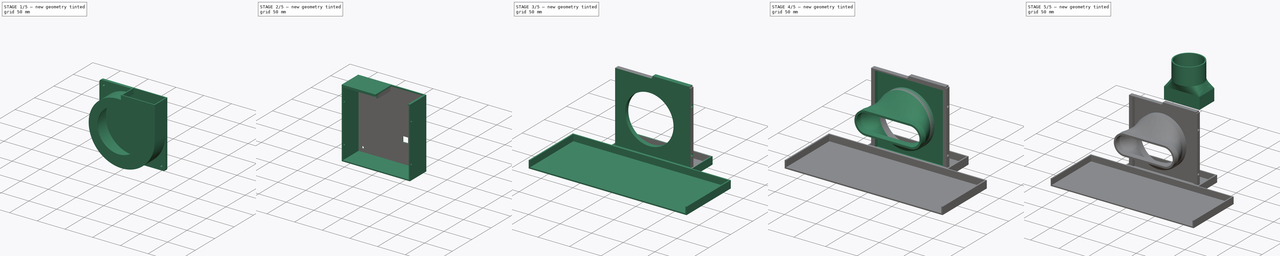
[diagram: build sequence overview — one tinted view per stage of 5, left to right]
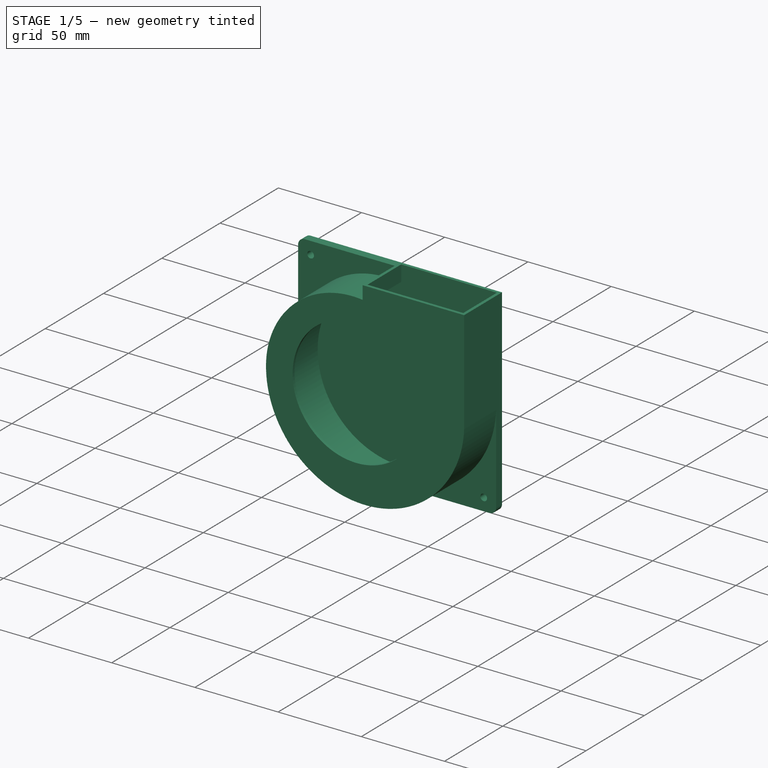
[diagram: stage 1 of 5 — iso view after this stage's code; geometry added in this stage tinted green]
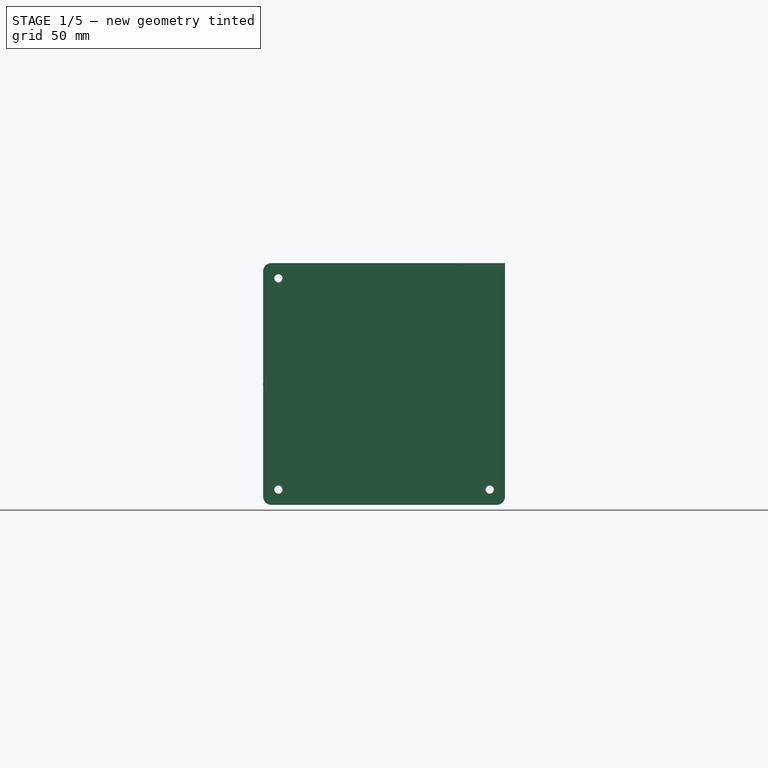
[diagram: stage 1 of 5 — front view after this stage's code; geometry added in this stage tinted green]
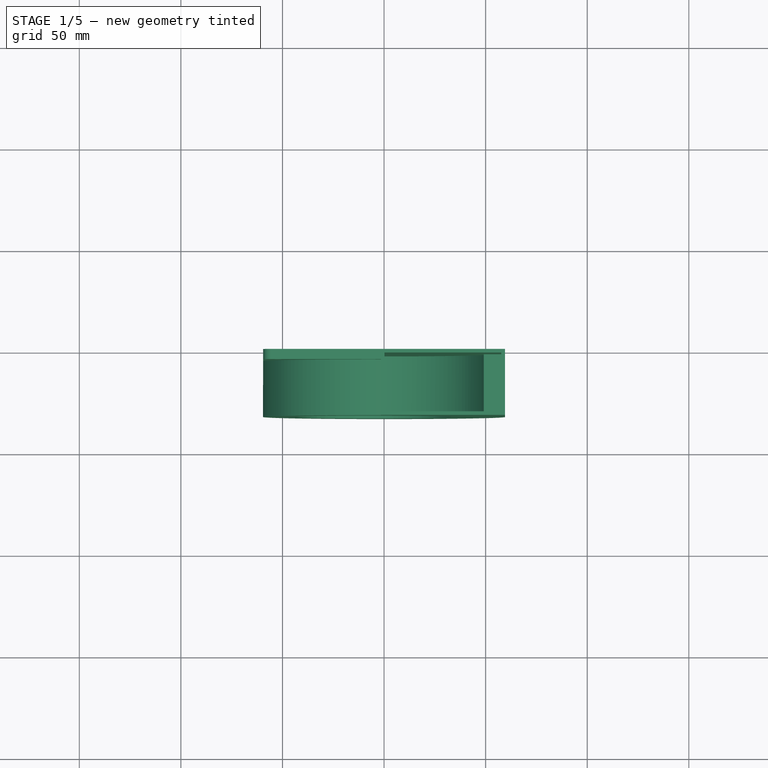
[diagram: stage 1 of 5 — top view after this stage's code; geometry added in this stage tinted green]
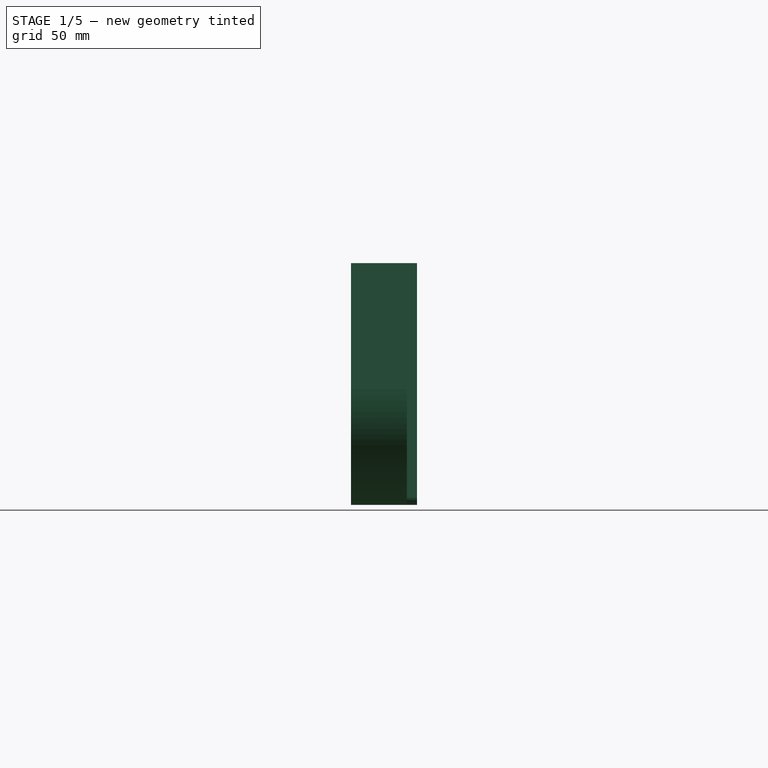
[diagram: stage 1 of 5 — right view after this stage's code; geometry added in this stage tinted green]
FCSTD DOCUMENT  (FreeCAD 1.0R39109 (Git))
Label: FumeHood
License: All rights reserved
LicenseURL: http://en.wikipedia.org/wiki/All_rights_reserved
objects: Sketcher::SketchObject×22, PartDesign::Pad×13, PartDesign::Pocket×9, PartDesign::Body×6, PartDesign::SubShapeBinder×6, PartDesign::AdditiveLoft×2, PartDesign::Fillet×1
note: 131 computed .brp shape members not serialized (recipe doc carries the construction recipe); baked Part::Feature solids carry a one-line shape summary decoded from their .brp

FEATURE [Sketcher::SketchObject] Sketch  label="FanBackSketch"
  ArcFitTolerance = 0
  AttachmentSupport = -> [XZ_Plane]
  FullyConstrained = true
  MakeInternals = false
  MapMode = 5
  Placement = pos=(0,0,0) rot=(1,0,0;1.5708rad)
  sketch-geometry (8):
    g0: LineSegment StartX=59.5 StartY=-59.5 StartZ=0 EndX=59.5 EndY=59.5 EndZ=0
    g1: LineSegment StartX=59.5 StartY=59.5 StartZ=0 EndX=-59.5 EndY=59.5 EndZ=0
    g2: LineSegment StartX=-59.5 StartY=59.5 StartZ=0 EndX=-59.5 EndY=-59.5 EndZ=0
    g3: LineSegment StartX=-59.5 StartY=-59.5 StartZ=0 EndX=59.5 EndY=-59.5 EndZ=0
    g4: GeomPoint [constr] X=0 Y=0 Z=0
    g5: Circle CenterX=-52 CenterY=52 CenterZ=0 NormalX=0 NormalY=0 NormalZ=1 AngleXU=0 Radius=2
    g6: Circle CenterX=52 CenterY=-52 CenterZ=0 NormalX=0 NormalY=0 NormalZ=1 AngleXU=0 Radius=2
    g7: Circle CenterX=-52 CenterY=-52 CenterZ=0 NormalX=0 NormalY=0 NormalZ=1 AngleXU=0 Radius=2
  constraints (22):
    c: Coincident(g0,g1)
    c: Coincident(g1,g2)
    c: Coincident(g2,g3)
    c: Coincident(g3,g0)
    c: Horizontal(g1)
    c: Horizontal(g3)
    c: Vertical(g0)
    c: Vertical(g2)
    c: Symmetric(g1,g0,g4)
    c: Coincident(g4,g-1)
    c: DistanceY(g2,g2) = 119  'height'
    c: DistanceX(g1,g1) = 119  'width'
    c: Equal(g5,g7)
    c: Equal(g5,g6)
    c: Diameter(g5) = 4  'skrewDiameter'
    c: Vertical(g5,g7)
    c: Horizontal(g7,g6)
    c: DistanceX(g2,g7) = 7.5
    c: DistanceY(g2,g7) = 7.5
    c: DistanceY(g5,g1) = 7.5
    c: DistanceX(g6,g0) = 7.5
    c: DistanceX(g7,g4) = 52  'skrewOffset'
FEATURE [PartDesign::Pad] Pad  label="FanBackPad"
  Direction = (0,-1,2e-16)
  Length = 5
  Length2 = 10
  Placement = pos=(0,0,0) rot=(1,0,0;1.5708rad)
  Profile = -> Sketch
  ReferenceAxis = -> Sketch [N_Axis]
  Suppressed = false
  Type = 0
FEATURE [Sketcher::SketchObject] Sketch001  label="FanShellSketch"
  ArcFitTolerance = 0
  AttachmentSupport = -> [Pad]
  ExternalGeometry = -> [Pad]
  FullyConstrained = true
  MakeInternals = false
  MapMode = 5
  Placement = pos=(0,-5,0) rot=(1,0,0;1.5708rad)
  sketch-geometry (10):
    g0: Circle CenterX=-5.32 CenterY=0.16 CenterZ=0 NormalX=0 NormalY=0 NormalZ=1 AngleXU=0 Radius=38.25
    g1: LineSegment StartX=59.5 StartY=59.5 StartZ=0 EndX=-1.5 EndY=59.5 EndZ=0
    g2: LineSegment StartX=-1.5 StartY=59.5 StartZ=0 EndX=-1.5 EndY=51.5 EndZ=0
    g3: LineSegment StartX=59.5 StartY=-2.5 StartZ=0 EndX=59.5 EndY=59.5 EndZ=0
    g4: GeomPoint [constr] X=-59.5 Y=-2.5 Z=0
    g5: GeomPoint [constr] X=-1.5 Y=-59.5 Z=0
    g6: GeomPoint [constr] X=59.5 Y=-2.5 Z=0
    g7: ArcOfCircle CenterX=-7.68966 CenterY=0 CenterZ=0 NormalX=0 NormalY=0 NormalZ=1 AngleXU=0 Radius=51.8706 StartAngle=1.45118 EndAngle=3.18981
    g8: ArcOfCircle CenterX=-0.0344828 CenterY=0 CenterZ=0 NormalX=0 NormalY=0 NormalZ=1 AngleXU=0 Radius=59.518 StartAngle=3.18361 EndAngle=4.68776
    g9: ArcOfCircle CenterX=0.0327869 CenterY=0 CenterZ=0 NormalX=0 NormalY=0 NormalZ=1 AngleXU=0 Radius=59.5197 StartAngle=4.68663 EndAngle=6.24117
  constraints (26):
    c: DistanceX(g0,g-1) = 5.32  'inntakeWidthOffset'
    c: Diameter(g0) = 76.5  'inntakeDiameter'
    c: Coincident(g1,g2)
    c: Coincident(g3,g1)
    c: Horizontal(g1)
    c: Vertical(g2)
    c: Vertical(g3)
    c: Coincident(g1,g-7)
    c: DistanceX(g1,g1) = 61  'exhaustWidth'
    c: DistanceY(g2,g2) = 8  'exhaustHeight'
    c: PointOnObject(g4,g-6)
    c: DistanceY(g-6,g4) = 57
    c: PointOnObject(g5,g-8)
    c: Horizontal(g6,g4)
    c: Vertical(g5,g2)
    c: Coincident(g7,g2)
    c: Coincident(g7,g4)
    c: Coincident(g8,g7)
    c: Coincident(g9,g8)
    c: Coincident(g9,g6)
    c: PointOnObject(g7,g-1)
    c: Coincident(g8,g5)
    c: PointOnObject(g8,g-1)
    c: PointOnObject(g9,g-1)
    c: Coincident(g3,g9)
    c: DistanceY(g9,g0) = 0.16  'inntakeHeightOffset'
FEATURE [PartDesign::Pad] Pad001  label="FanShellPad"
  BaseFeature = -> Pad
  Direction = (0,-1,2e-16)
  Length = 27.5
  Length2 = 10
  Placement = pos=(0,0,0) rot=(1,0,0;1.5708rad)
  Profile = -> Sketch001
  ReferenceAxis = -> Sketch001 [N_Axis]
  Suppressed = false
  Type = 0
FEATURE [Sketcher::SketchObject] Sketch002  label="FanExhaustSketch"
  ArcFitTolerance = 0
  AttachmentSupport = -> [Pad001]
  ExternalGeometry = -> [Pad001]
  FullyConstrained = true
  MakeInternals = false
  MapMode = 5
  Placement = pos=(0,1.32e-14,59.5) rot=(0,0,1;3.14159rad)
  sketch-geometry (4):
    g0: LineSegment StartX=-57.7 StartY=30.7 StartZ=0 EndX=-0.2 EndY=30.7 EndZ=0
    g1: LineSegment StartX=-0.2 StartY=30.7 StartZ=0 EndX=-0.2 EndY=1.8 EndZ=0
    g2: LineSegment StartX=-0.2 StartY=1.8 StartZ=0 EndX=-57.7 EndY=1.8 EndZ=0
    g3: LineSegment StartX=-57.7 StartY=1.8 StartZ=0 EndX=-57.7 EndY=30.7 EndZ=0
  constraints (12):
    c: Coincident(g0,g1)
    c: Coincident(g1,g2)
    c: Coincident(g2,g3)
    c: Coincident(g3,g0)
    c: Horizontal(g0)
    c: Horizontal(g2)
    c: Vertical(g1)
    c: Vertical(g3)
    c: DistanceY(g0,g-3) = 1.8
    c: DistanceX(g-3,g0) = 1.8
    c: DistanceY(g-1,g1) = 1.8
    c: DistanceX(g0,g0) = 57.5
FEATURE [PartDesign::Pocket] Pocket  label="FanExhaustPocket"
  BaseFeature = -> Pad001
  Direction = (0,0,-1)
  Length = 50
  Length2 = 5
  Placement = pos=(0,0,0) rot=(1,0,0;1.5708rad)
  Profile = -> Sketch002
  ReferenceAxis = -> Sketch002 [N_Axis]
  Suppressed = false
  Type = 0
FEATURE [Sketcher::SketchObject] Sketch003  label="FanInternalSketch"
  ArcFitTolerance = 0
  AttachmentSupport = -> [Pocket]
  ExternalGeometry = -> [Pocket]
  FullyConstrained = true
  MakeInternals = false
  MapMode = 5
  Placement = pos=(0,-1.8,0) rot=(1,0,0;1.5708rad)
  sketch-geometry (1):
    g0: Circle CenterX=0 CenterY=0 CenterZ=0 NormalX=0 NormalY=0 NormalZ=1 AngleXU=0 Radius=50
  constraints (2):
    c: Coincident(g0,g-1)
    c: Diameter(g0) = 100
FEATURE [PartDesign::Pocket] Pocket001  label="FanInternalPocket"
  BaseFeature = -> Pocket
  Direction = (0,1,-2e-16)
  Length = 29
  Length2 = 5
  Placement = pos=(0,0,0) rot=(1,0,0;1.5708rad)
  Profile = -> Sketch003
  ReferenceAxis = -> Sketch003 [N_Axis]
  Reversed = true
  Suppressed = false
  Type = 0
FEATURE [PartDesign::Fillet] Fillet
  Base = -> Pocket001 [Edge12,Edge6,Edge1]
  BaseFeature = -> Pocket001
  Placement = pos=(0,0,0) rot=(1,0,0;1.5708rad)
  Radius = 4
  SupportTransform = false
  Suppressed = false
  UseAllEdges = false
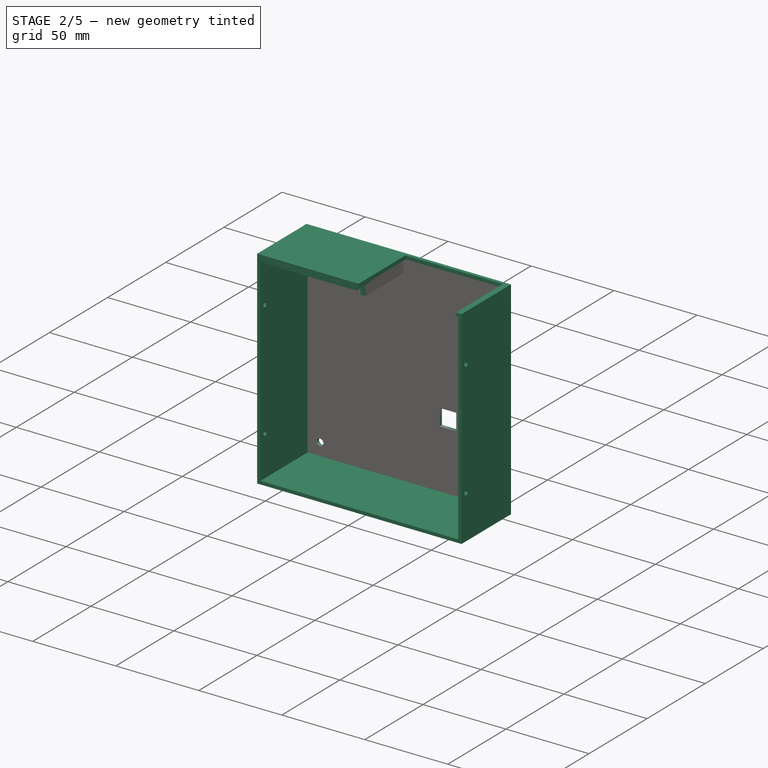
[diagram: stage 2 of 5 — iso view after this stage's code; geometry added in this stage tinted green]
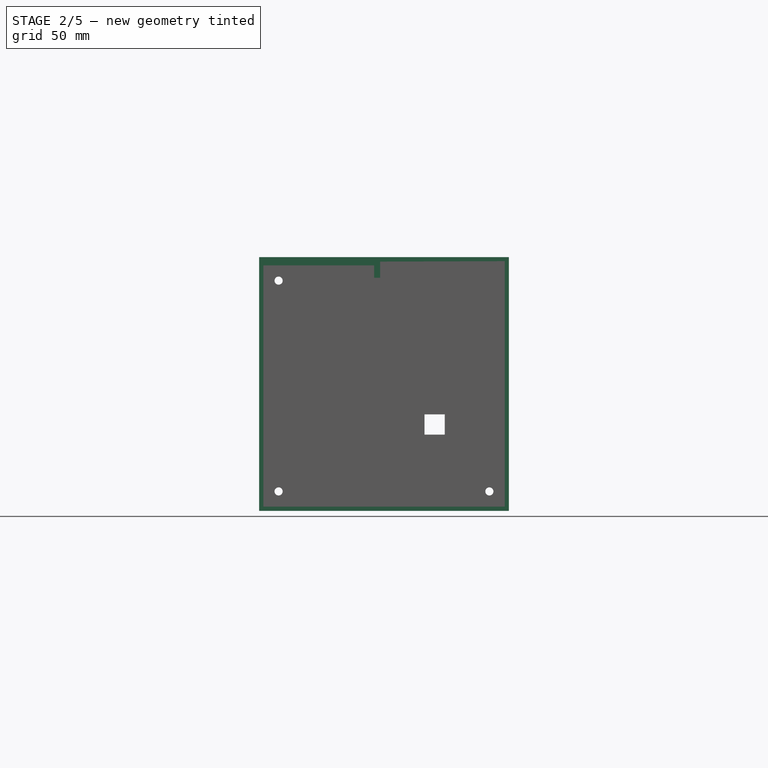
[diagram: stage 2 of 5 — front view after this stage's code; geometry added in this stage tinted green]
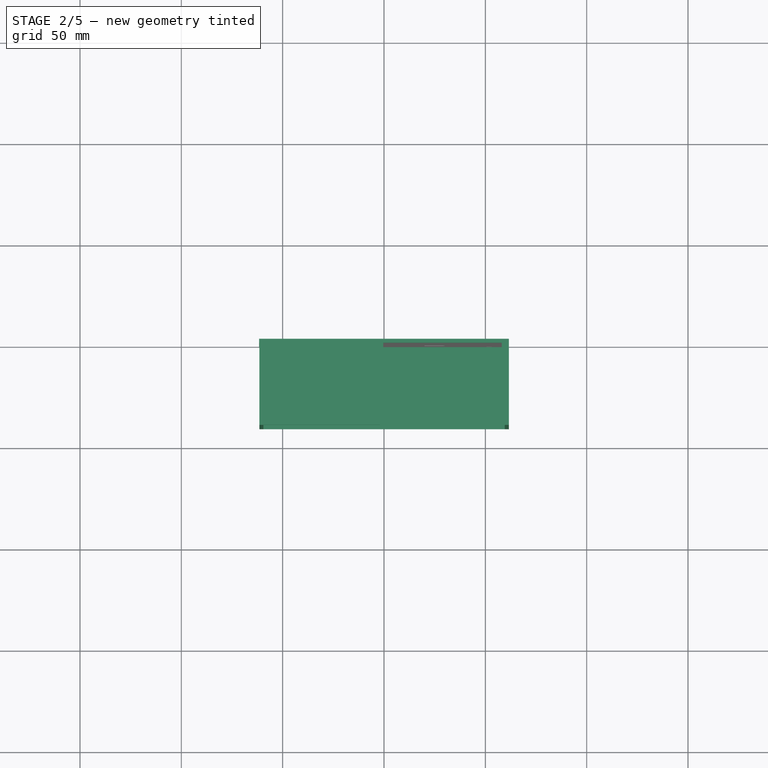
[diagram: stage 2 of 5 — top view after this stage's code; geometry added in this stage tinted green]
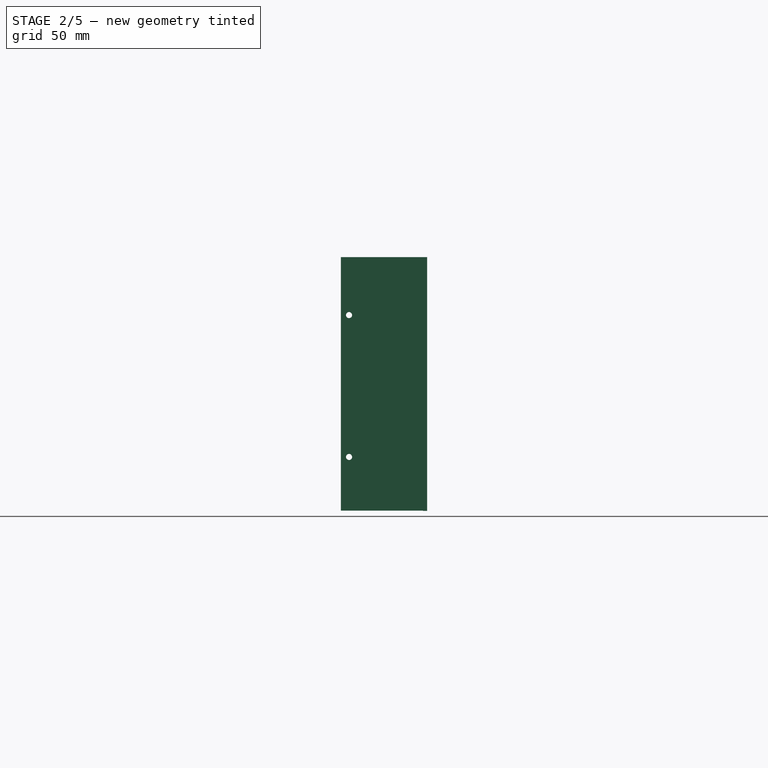
[diagram: stage 2 of 5 — right view after this stage's code; geometry added in this stage tinted green]
FEATURE [PartDesign::Body] Body004  label="InntakeBox"
  AllowCompound = false
  Group = -> [Binder003,Binder,Sketch016,Pad010,Sketch018,Pocket005,Sketch019,Pocket006,Sketch041,Pad026,Sketch042,AdditiveLoft001,Pad027,Sketch044,Pocket016]
  Origin = -> Origin004
  Tip = -> Pocket016
FEATURE [PartDesign::SubShapeBinder] Binder004  label="FanBodyCasingBinder"
  BindCopyOnChange = 0
  BindMode = 0
  ClaimChildren = false
  Context = -> Body001 [Binder004.]
  Fuse = false
  MakeFace = true
  OffsetFill = false
  OffsetIntersection = false
  OffsetJoinType = 0
  OffsetOpenResult = false
  PartialLoad = false
  Refine = true
  Relative = true
  Support = -> [Body[Fillet.]]
  _Version = 2
FEATURE [Sketcher::SketchObject] Sketch004  label="CasingBackSketch"
  ArcFitTolerance = 0
  AttachmentSupport = -> [XZ_Plane001]
  ExternalGeometry = -> [Binder004]
  FullyConstrained = true
  MakeInternals = false
  MapMode = 5
  Placement = pos=(0,0,0) rot=(1,0,0;1.5708rad)
  sketch-geometry (7):
    g0: Circle CenterX=-52 CenterY=52 CenterZ=0 NormalX=0 NormalY=0 NormalZ=1 AngleXU=0 Radius=2
    g1: Circle CenterX=-52 CenterY=-52 CenterZ=0 NormalX=0 NormalY=0 NormalZ=1 AngleXU=0 Radius=2
    g2: Circle CenterX=52 CenterY=-52 CenterZ=0 NormalX=0 NormalY=0 NormalZ=1 AngleXU=0 Radius=2
    g3: LineSegment StartX=-61.6 StartY=63.6 StartZ=0 EndX=-61.6 EndY=-61.6 EndZ=0
    g4: LineSegment StartX=-61.6 StartY=-61.6 StartZ=0 EndX=61.6 EndY=-61.6 EndZ=0
    g5: LineSegment StartX=61.6 StartY=-61.6 StartZ=0 EndX=61.6 EndY=63.6 EndZ=0
    g6: LineSegment StartX=61.6 StartY=63.6 StartZ=0 EndX=-61.6 EndY=63.6 EndZ=0
  constraints (18):
    c: Coincident(g0,g-3)
    c: Equal(g0,g-3)
    c: Coincident(g1,g-4)
    c: Equal(g1,g-4)
    c: Coincident(g2,g-5)
    c: Equal(g2,g-5)
    c: Coincident(g3,g4)
    c: Coincident(g4,g5)
    c: Coincident(g5,g6)
    c: Coincident(g6,g3)
    c: Vertical(g3)
    c: Vertical(g5)
    c: Horizontal(g4)
    c: Horizontal(g6)
    c: DistanceX(g-7,g4) = 2.1
    c: DistanceY(g4,g-6) = 2.1
    c: DistanceX(g3,g-8) = 2.1
    c: DistanceY(g-7,g5) = 4.1
FEATURE [PartDesign::Pad] Pad002  label="CasingBackPad"
  Direction = (0,-1,2e-16)
  Length = 2
  Length2 = 10
  Placement = pos=(0,0,0) rot=(1,0,0;1.5708rad)
  Profile = -> Sketch004
  ReferenceAxis = -> Sketch004 [N_Axis]
  Reversed = true
  Suppressed = false
  Type = 0
FEATURE [Sketcher::SketchObject] Sketch005  label="CasingShellSketch"
  ArcFitTolerance = 0
  AttachmentSupport = -> [Pad002]
  ExternalGeometry = -> [Binder004,Pad002]
  FullyConstrained = true
  MakeInternals = false
  MapMode = 5
  Placement = pos=(0,0,0) rot=(1,0,0;1.5708rad)
  sketch-geometry (16):
    g0: LineSegment StartX=-61.5 StartY=63.6 StartZ=0 EndX=-0.4 EndY=63.6 EndZ=0
    g1: LineSegment StartX=-4.9 StartY=53.4 StartZ=0 EndX=-4.9 EndY=59.5 EndZ=0
    g2: LineSegment StartX=-4.9 StartY=59.5 StartZ=0 EndX=-59.5 EndY=59.5 EndZ=0
    g3: LineSegment StartX=-1.9 StartY=61.4 StartZ=0 EndX=-0.4 EndY=61.4 EndZ=0
    g4: LineSegment StartX=-0.4 StartY=61.4 StartZ=0 EndX=-0.4 EndY=63.6 EndZ=0
    g5: LineSegment StartX=-1.9 StartY=61.4 StartZ=0 EndX=-1.9 EndY=53.4 EndZ=0
    g6: LineSegment StartX=-1.9 StartY=53.4 StartZ=0 EndX=-4.9 EndY=53.4 EndZ=0
    g7: LineSegment StartX=-59.5 StartY=59.5 StartZ=0 EndX=-59.5 EndY=-59.5 EndZ=0
    g8: LineSegment StartX=-59.5 StartY=-59.5 StartZ=0 EndX=59.6 EndY=-59.5 EndZ=0
    g9: LineSegment StartX=59.6 StartY=-59.5 StartZ=0 EndX=59.6 EndY=61.6 EndZ=0
    g10: LineSegment StartX=59.6 StartY=61.6 StartZ=0 EndX=58.1 EndY=61.6 EndZ=0
    g11: LineSegment StartX=58.1 StartY=61.6 StartZ=0 EndX=58.1 EndY=63.6 EndZ=0
    g12: LineSegment StartX=58.1 StartY=63.6 StartZ=0 EndX=61.6 EndY=63.6 EndZ=0
    g13: LineSegment StartX=61.6 StartY=63.6 StartZ=0 EndX=61.6 EndY=-61.5 EndZ=0
    g14: LineSegment StartX=61.6 StartY=-61.5 StartZ=0 EndX=-61.5 EndY=-61.5 EndZ=0
    g15: LineSegment StartX=-61.5 StartY=-61.5 StartZ=0 EndX=-61.5 EndY=63.6 EndZ=0
  constraints (47):
    c: Horizontal(g0)
    c: Coincident(g3,g5)
    c: Coincident(g4,g0)
    c: Coincident(g6,g1)
    c: Coincident(g1,g2)
    c: Horizontal(g2)
    c: Vertical(g1)
    c: Coincident(g3,g4)
    c: Coincident(g5,g6)
    c: Horizontal(g6)
    c: Horizontal(g3)
    c: DistanceY(g4,g4) = 2.2
    c: DistanceX(g3,g3) = 1.5
    c: Vertical(g4)
    c: Vertical(g5)
    c: DistanceY(g5,g5) = 8
    c: DistanceX(g6,g6) = 3
    c: Coincident(g7,g2)
    c: Vertical(g7)
    c: Coincident(g8,g7)
    c: Horizontal(g8)
    c: Coincident(g9,g8)
    c: Vertical(g9)
    c: Horizontal(g10)
    c: Vertical(g11)
    c: Horizontal(g12)
    c: Vertical(g13)
    c: Coincident(g14,g13)
    c: Horizontal(g14)
    c: Coincident(g15,g14)
    c: Coincident(g15,g0)
    c: Vertical(g-3,g2)
    c: Horizontal(g-4,g8)
    c: Vertical(g15)
    c: Coincident(g10,g11)
    c: Coincident(g10,g9)
    c: Coincident(g11,g12)
    c: Coincident(g12,g13)
    c: DistanceY(g13,g8) = 2
    c: DistanceX(g8,g13) = 2
    c: DistanceX(g14,g7) = 2
    c: Horizontal(g11,g0)
    c: DistanceY(g11,g11) = 2
    c: Horizontal(g-5,g1)
    c: DistanceX(g0,g-1) = 0.4
    c: DistanceX(g10,g10) = 1.5
    c: Coincident(g12,g-6)
FEATURE [PartDesign::Pad] Pad003  label="CasingShellPad"
  BaseFeature = -> Pad002
  Direction = (0,-1,2e-16)
  Length = 40.5
  Length2 = 10
  Placement = pos=(0,0,0) rot=(1,0,0;1.5708rad)
  Profile = -> Sketch005
  ReferenceAxis = -> Sketch005 [N_Axis]
  Suppressed = false
  Type = 0
FEATURE [PartDesign::Pocket] Pocket002  label="CutoffPocket"
  BaseFeature = -> Pad003
  Direction = (0,1,-2e-16)
  Length = 5
  Length2 = 5
  Placement = pos=(0,0,0) rot=(1,0,0;1.5708rad)
  Profile = -> Sketch014
  ReferenceAxis = -> Sketch014 [N_Axis]
  Reversed = true
  Suppressed = false
  Type = 1
FEATURE [Sketcher::SketchObject] Sketch015  label="FrontSkrewSketch"
  ArcFitTolerance = 0
  AttachmentSupport = -> [Pocket002]
  FullyConstrained = true
  MakeInternals = false
  MapMode = 5
  Placement = pos=(61.6,0,0) rot=(0.707107,0,0.707107;3.14159rad)
  sketch-geometry (2):
    g0: Circle CenterX=-35 CenterY=36.5 CenterZ=0 NormalX=0 NormalY=0 NormalZ=1 AngleXU=0 Radius=1.5
    g1: Circle CenterX=35 CenterY=36.5 CenterZ=0 NormalX=0 NormalY=0 NormalZ=1 AngleXU=0 Radius=1.5
  constraints (5):
    c: Symmetric(g0,g1,g-2)
    c: Equal(g0,g1)
    c: Diameter(g0) = 3  'screwDiameter'
    c: DistanceY(g0,g-3) = 4  'topOffset'
    c: DistanceX(g0,g1) = 70  'centerOffset'
FEATURE [PartDesign::Pocket] Pocket003  label="FrontSkrewPocket"
  BaseFeature = -> Pocket002
  Direction = (-1,0,2e-16)
  Length = 5
  Length2 = 5
  Placement = pos=(0,0,0) rot=(1,0,0;1.5708rad)
  Profile = -> Sketch015
  ReferenceAxis = -> Sketch015 [N_Axis]
  Suppressed = false
  Type = 1
FEATURE [PartDesign::Pocket] Pocket014  label="FanPowerCablePocket"
  BaseFeature = -> Pocket003
  Direction = (0,-1,-2e-16)
  Length = 5
  Length2 = 5
  Placement = pos=(0,0,0) rot=(1,0,0;1.5708rad)
  Profile = -> Sketch036
  ReferenceAxis = -> Sketch036 [N_Axis]
  Suppressed = false
  Type = 0
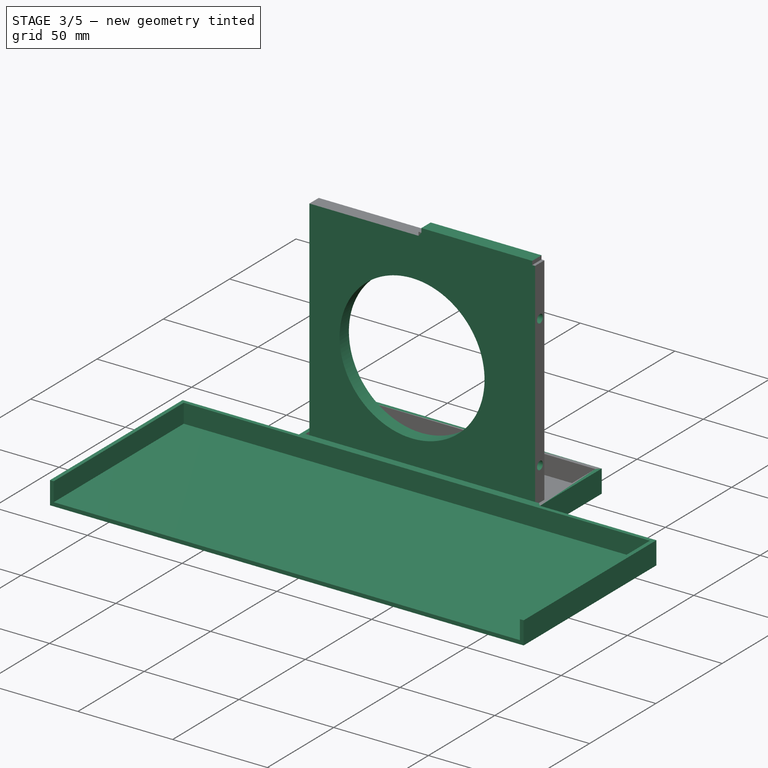
[diagram: stage 3 of 5 — iso view after this stage's code; geometry added in this stage tinted green]
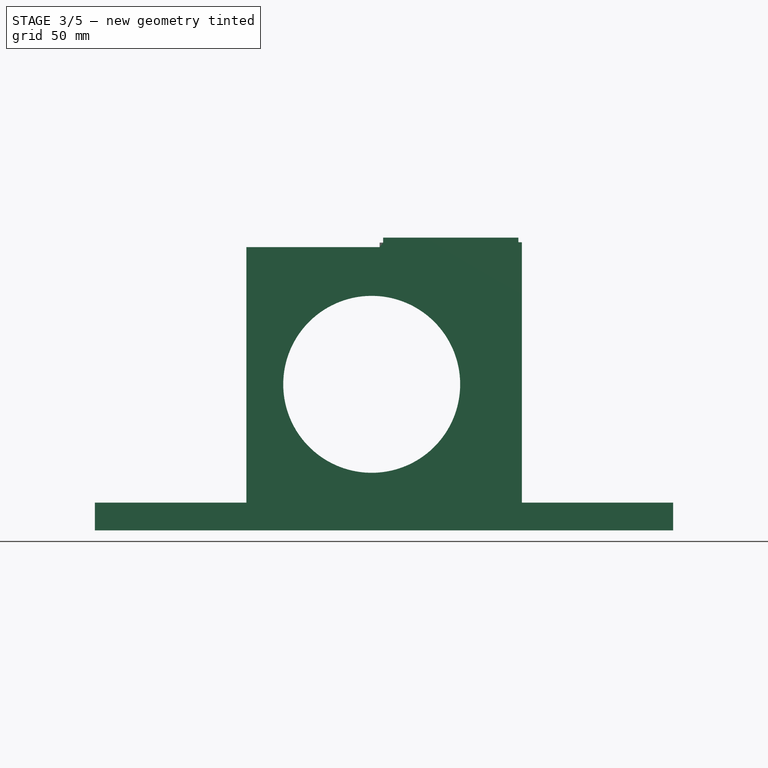
[diagram: stage 3 of 5 — front view after this stage's code; geometry added in this stage tinted green]
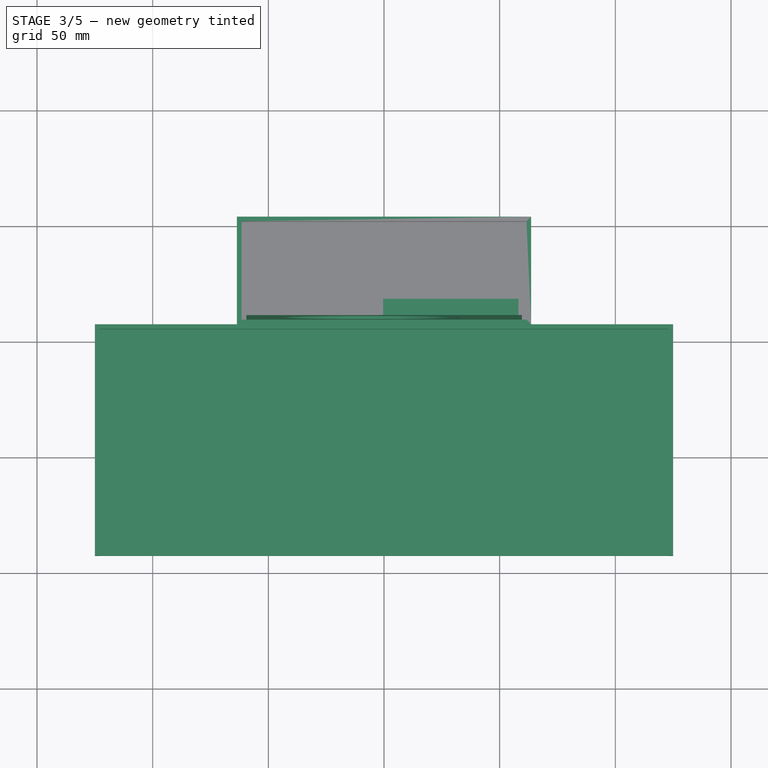
[diagram: stage 3 of 5 — top view after this stage's code; geometry added in this stage tinted green]
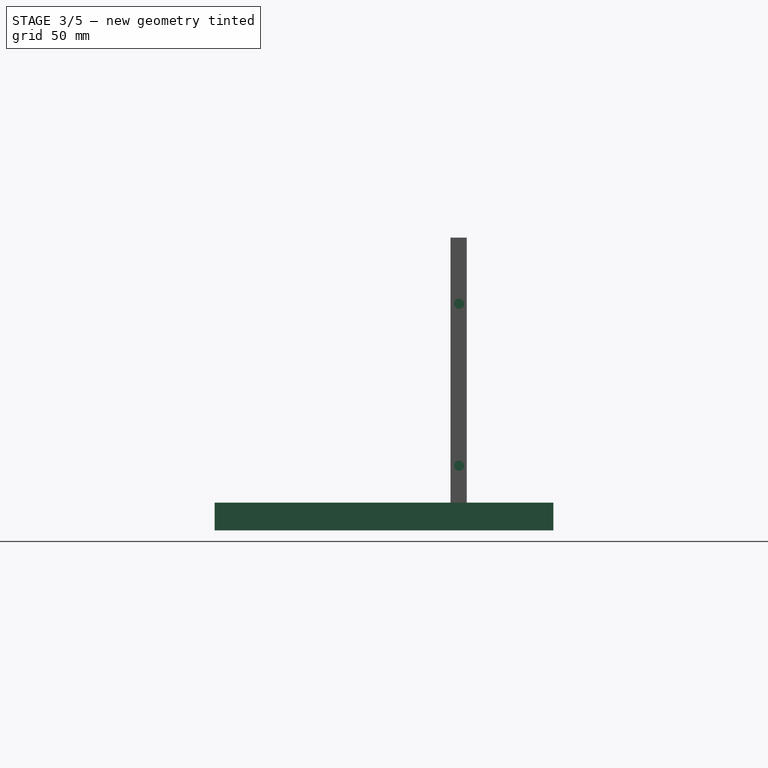
[diagram: stage 3 of 5 — right view after this stage's code; geometry added in this stage tinted green]
FEATURE [PartDesign::Body] Body003  label="DuctAttachement"
  AllowCompound = false
  Group = -> [Binder002,Sketch012,Pad008,Sketch013,AdditiveLoft,Pad009]
  Origin = -> Origin003
  Tip = -> Pad009
FEATURE [PartDesign::SubShapeBinder] Binder003  label="FanBinder"
  BindCopyOnChange = 0
  BindMode = 0
  ClaimChildren = false
  Context = -> Body004 [Binder003.]
  Fuse = false
  MakeFace = true
  OffsetFill = false
  OffsetIntersection = false
  OffsetJoinType = 0
  OffsetOpenResult = false
  PartialLoad = false
  Refine = true
  Relative = true
  Support = -> [Body[Fillet.]]
  _Version = 2
FEATURE [Sketcher::SketchObject] Sketch016  label="FrontBaseSketch"
  ArcFitTolerance = 0
  AttachmentOffset = pos=(0,0,33.5) rot=(0,0,1;0rad)
  AttachmentSupport = -> [XZ_Plane004]
  ExternalGeometry = -> [Binder,Binder003]
  FullyConstrained = true
  MakeInternals = false
  MapMode = 5
  Placement = pos=(0,-33.5,7.4e-15) rot=(1,0,0;1.5708rad)
  sketch-geometry (11):
    g0: LineSegment StartX=-0.4 StartY=63.6 StartZ=0 EndX=-0.4 EndY=61.4 EndZ=0
    g1: LineSegment StartX=-0.4 StartY=61.4 StartZ=0 EndX=-1.9 EndY=61.4 EndZ=0
    g2: LineSegment StartX=-1.9 StartY=61.4 StartZ=0 EndX=-1.9 EndY=59.5 EndZ=0
    g3: LineSegment StartX=-1.9 StartY=59.5 StartZ=0 EndX=-59.5 EndY=59.5 EndZ=0
    g4: LineSegment StartX=-59.5 StartY=59.5 StartZ=0 EndX=-59.5 EndY=-59.5 EndZ=0
    g5: LineSegment StartX=-59.5 StartY=-59.5 StartZ=0 EndX=59.6 EndY=-59.5 EndZ=0
    g6: LineSegment StartX=59.6 StartY=-59.5 StartZ=0 EndX=59.6 EndY=61.6 EndZ=0
    g7: LineSegment StartX=58.1 StartY=61.6 StartZ=0 EndX=58.1 EndY=63.6 EndZ=0
    g8: LineSegment StartX=58.1 StartY=63.6 StartZ=0 EndX=-0.4 EndY=63.6 EndZ=0
    g9: Circle CenterX=-5.32 CenterY=0.16 CenterZ=0 NormalX=0 NormalY=0 NormalZ=1 AngleXU=0 Radius=38.25
    g10: LineSegment StartX=59.6 StartY=61.6 StartZ=0 EndX=58.1 EndY=61.6 EndZ=0
  constraints (22):
    c: Coincident(g0,g-8)
    c: Coincident(g0,g-7)
    c: Coincident(g1,g0)
    c: Coincident(g1,g-6)
    c: Coincident(g2,g1)
    c: Coincident(g2,g-4)
    c: Coincident(g3,g2)
    c: Coincident(g3,g-13)
    c: Coincident(g4,g3)
    c: Coincident(g4,g-13)
    c: Coincident(g5,g4)
    c: Coincident(g5,g-12)
    c: Coincident(g6,g5)
    c: Coincident(g6,g-11)
    c: Coincident(g7,g-9)
    c: Coincident(g8,g7)
    c: Coincident(g8,g0)
    c: Coincident(g9,g-14)
    c: Equal(g9,g-14)
    c: Coincident(g10,g6)
    c: Coincident(g10,g7)
    c: Coincident(g-10,g7)
FEATURE [PartDesign::Pad] Pad010  label="FrontBasePad"
  Direction = (0,-1,2e-16)
  Length = 7
  Length2 = 10
  Placement = pos=(0,0,0) rot=(1,0,0;1.5708rad)
  Profile = -> Sketch016
  ReferenceAxis = -> Sketch016 [N_Axis]
  Suppressed = false
  Type = 0
FEATURE [Sketcher::SketchObject] Sketch018  label="FrontRightHeatInsertSketch"
  ArcFitTolerance = 0
  AttachmentSupport = -> [Pad010]
  FullyConstrained = false
  MakeInternals = false
  MapMode = 5
  Placement = pos=(59.6,0,0) rot=(0.707107,0,0.707107;3.14159rad)
  sketch-geometry (2):
    g0: Circle CenterX=-35 CenterY=36.8 CenterZ=0 NormalX=0 NormalY=0 NormalZ=1 AngleXU=0 Radius=2.2
    g1: Circle CenterX=35 CenterY=36.8 CenterZ=0 NormalX=0 NormalY=0 NormalZ=1 AngleXU=0 Radius=2.2
  constraints (4):
    c: Symmetric(g0,g1,g-2)
    c: DistanceX(g0,g1) = 70  'holeOffset'
    c: Equal(g0,g1)
    c: Diameter(g0) = 4.4  'insertDiameter'
FEATURE [PartDesign::Pocket] Pocket005  label="FrontRightHeatInsertPocket"
  BaseFeature = -> Pad010
  Direction = (-1,0,2e-16)
  Length = 5
  Length2 = 5
  Placement = pos=(0,0,0) rot=(1,0,0;1.5708rad)
  Profile = -> Sketch018
  ReferenceAxis = -> Sketch018 [N_Axis]
  Suppressed = false
  Type = 0
FEATURE [Sketcher::SketchObject] Sketch040
  ArcFitTolerance = 0
  AttachmentSupport = -> [Pocket014]
  ExternalGeometry = -> [Pocket014]
  FullyConstrained = true
  MakeInternals = false
  MapMode = 5
  Placement = pos=(-1.9,0,0) rot=(0.707107,0,0.707107;3.14159rad)
  sketch-geometry (4):
    g0: LineSegment StartX=59.5 StartY=-7.1e-15 StartZ=0 EndX=53.4 EndY=0 EndZ=0
    g1: LineSegment StartX=51.5 StartY=21.4252 StartZ=0 EndX=59.5 EndY=10 EndZ=0
    g2: LineSegment StartX=59.5 StartY=10 StartZ=0 EndX=59.5 EndY=-7.1e-15 EndZ=0
    g3: LineSegment StartX=51.5 StartY=21.4252 StartZ=0 EndX=53.4 EndY=0 EndZ=0
  constraints (10):
    c: Coincident(g0,g-5)
    c: Coincident(g0,g-4)
    c: PointOnObject(g1,g-3)
    c: PointOnObject(g1,g-5)
    c: Coincident(g2,g1)
    c: Coincident(g2,g0)
    c: Coincident(g3,g1)
    c: Coincident(g3,g0)
    c: Angle(g-5,g1) = 0.610865
    c: DistanceY(g0,g1) = 10
FEATURE [PartDesign::Pocket] Pocket015
  BaseFeature = -> Pocket014
  Direction = (-1,0,2e-16)
  Length = 5
  Length2 = 5
  Placement = pos=(0,0,0) rot=(1,0,0;1.5708rad)
  Profile = -> Sketch040
  ReferenceAxis = -> Sketch040 [N_Axis]
  Suppressed = false
  Type = 0
FEATURE [PartDesign::Body] Body001  label="FanCasing"
  AllowCompound = false
  Group = -> [Binder004,Sketch004,Pad002,Sketch005,Pad003,Sketch014,Pocket002,Sketch015,Pocket003,Sketch036,Pocket014,Sketch040,Pocket015]
  Origin = -> Origin001
  Tip = -> Pocket015
FEATURE [PartDesign::SubShapeBinder] Binder005  label="SolderJigFanCasingBinder"
  BindCopyOnChange = 0
  BindMode = 0
  ClaimChildren = false
  Context = -> Body005 [Binder005.]
  Fuse = false
  MakeFace = true
  OffsetFill = false
  OffsetIntersection = false
  OffsetJoinType = 0
  OffsetOpenResult = false
  PartialLoad = false
  Refine = true
  Relative = true
  Support = -> [Body001[Pocket015.]]
  _Version = 2
FEATURE [Sketcher::SketchObject] Sketch045
  ArcFitTolerance = 1e-06
  AttachmentOffset = pos=(0,0,-63) rot=(0,0,1;0rad)
  AttachmentSupport = -> [XY_Plane005]
  ExternalGeometry = -> [Binder005]
  FullyConstrained = true
  MakeInternals = false
  MapMode = 5
  Placement = pos=(0,0,-63) rot=(0,0,1;0rad)
  sketch-geometry (9):
    g0: LineSegment StartX=-63.6 StartY=4 StartZ=0 EndX=-63.6 EndY=-42.5 EndZ=0
    g1: LineSegment StartX=63.6 StartY=-42.5 StartZ=0 EndX=63.6 EndY=4 EndZ=0
    g2: LineSegment StartX=63.6 StartY=4 StartZ=0 EndX=-63.6 EndY=4 EndZ=0
    g3: LineSegment StartX=-63.6 StartY=-42.5 StartZ=0 EndX=-125 EndY=-42.5 EndZ=0
    g4: LineSegment StartX=-125 StartY=-42.5 StartZ=0 EndX=-125 EndY=-142.5 EndZ=0
    g5: LineSegment StartX=-125 StartY=-142.5 StartZ=0 EndX=125 EndY=-142.5 EndZ=0
    g6: LineSegment StartX=125 StartY=-142.5 StartZ=0 EndX=125 EndY=-42.5 EndZ=0
    g7: LineSegment StartX=125 StartY=-42.5 StartZ=0 EndX=63.6 EndY=-42.5 EndZ=0
    g8: GeomPoint X=-125 Y=-92.5 Z=0
  constraints (24):
    c: Coincident(g1,g2)
    c: Coincident(g2,g0)
    c: Vertical(g0)
    c: Vertical(g1)
    c: Horizontal(g2)
    c: DistanceX(g0,g-3) = 2
    c: DistanceX(g-5,g1) = 2
    c: DistanceY(g-5,g1) = 2
    c: DistanceY(g1,g-5) = 2
    c: Coincident(g3,g0)
    c: Coincident(g4,g3)
    c: Vertical(g4)
    c: Coincident(g5,g4)
    c: Horizontal(g5)
    c: Coincident(g6,g5)
    c: Vertical(g6)
    c: Coincident(g7,g6)
    c: Coincident(g7,g1)
    c: Symmetric(g6,g3,g-2)
    c: Symmetric(g4,g4,g8)
    c: Horizontal(g3)
    c: Horizontal(g7)
    c: DistanceX(g5,g5) = 250
    c: DistanceY(g6,g6) = 100
FEATURE [PartDesign::Pad] Pad028
  Direction = (0,0,1)
  Length = 2
  Length2 = 10
  Profile = -> Sketch045
  ReferenceAxis = -> Sketch045 [N_Axis]
  Refine = true
  Suppressed = false
  Type = 0
FEATURE [Sketcher::SketchObject] Sketch046
  ArcFitTolerance = 1e-06
  AttachmentSupport = -> [Pad028]
  ExternalGeometry = -> [Pad028]
  FullyConstrained = true
  MakeInternals = false
  MapMode = 5
  Placement = pos=(0,0,-61) rot=(0,0,1;0rad)
  sketch-geometry (16):
    g0: LineSegment StartX=-125 StartY=-142.5 StartZ=0 EndX=-123 EndY=-142.5 EndZ=0
    g1: LineSegment StartX=-123 StartY=-142.5 StartZ=0 EndX=-123 EndY=-44.5 EndZ=0
    g2: LineSegment StartX=-61.6 StartY=2 StartZ=0 EndX=61.6 EndY=2 EndZ=0
    g3: LineSegment StartX=-123 StartY=-44.5 StartZ=0 EndX=123 EndY=-44.5 EndZ=0
    g4: LineSegment StartX=123 StartY=-44.5 StartZ=0 EndX=123 EndY=-142.5 EndZ=0
    g5: LineSegment StartX=123 StartY=-142.5 StartZ=0 EndX=125 EndY=-142.5 EndZ=0
    g6: LineSegment StartX=125 StartY=-142.5 StartZ=0 EndX=125 EndY=-42.5 EndZ=0
    g7: LineSegment StartX=125 StartY=-42.5 StartZ=0 EndX=63.6 EndY=-42.5 EndZ=0
    g8: LineSegment StartX=63.6 StartY=-42.5 StartZ=0 EndX=63.6 EndY=4 EndZ=0
    g9: LineSegment StartX=63.6 StartY=4 StartZ=0 EndX=-63.6 EndY=4 EndZ=0
    g10: LineSegment StartX=-63.6 StartY=4 StartZ=0 EndX=-63.6 EndY=-42.5 EndZ=0
    g11: LineSegment StartX=-63.6 StartY=-42.5 StartZ=0 EndX=-125 EndY=-42.5 EndZ=0
    g12: LineSegment StartX=-125 StartY=-42.5 StartZ=0 EndX=-125 EndY=-142.5 EndZ=0
    g13: LineSegment StartX=-61.6 StartY=2 StartZ=0 EndX=-61.6 EndY=-40.5 EndZ=0
    g14: LineSegment StartX=-61.6 StartY=-40.5 StartZ=0 EndX=61.6 EndY=-40.5 EndZ=0
    g15: LineSegment StartX=61.6 StartY=-40.5 StartZ=0 EndX=61.6 EndY=2 EndZ=0
  constraints (40):
    c: Coincident(g0,g-8)
    c: Horizontal(g0)
    c: Vertical(g1)
    c: Horizontal(g2)
    c: Horizontal(g3)
    c: Coincident(g4,g3)
    c: Vertical(g4)
    c: Coincident(g5,g4)
    c: Coincident(g5,g-9)
    c: Horizontal(g5)
    c: Coincident(g6,g5)
    c: Coincident(g6,g-9)
    c: Coincident(g7,g6)
    c: Coincident(g7,g-6)
    c: Coincident(g8,g7)
    c: Coincident(g8,g-5)
    c: Coincident(g9,g8)
    c: Coincident(g9,g-4)
    c: Coincident(g10,g9)
    c: Coincident(g10,g-7)
    c: Coincident(g11,g10)
    c: Coincident(g11,g-8)
    c: Coincident(g12,g11)
    c: Coincident(g12,g0)
    c: Coincident(g3,g1)
    c: Coincident(g1,g0)
    c: Coincident(g13,g2)
    c: Vertical(g13)
    c: Coincident(g14,g13)
    c: Horizontal(g14)
    c: Coincident(g15,g14)
    c: Coincident(g15,g2)
    c: Vertical(g15)
    c: DistanceY(g2,g9) = 2
    c: DistanceX(g9,g2) = 2
    c: DistanceY(g10,g13) = 2
    c: DistanceX(g2,g8) = 2
    c: DistanceY(g1,g11) = 2
    c: DistanceX(g11,g1) = 2
    c: DistanceX(g3,g6) = 2
FEATURE [PartDesign::Pad] Pad029
  BaseFeature = -> Pad028
  Direction = (0,0,1)
  Length = 10
  Length2 = 10
  Profile = -> Sketch046
  ReferenceAxis = -> Sketch046 [N_Axis]
  Refine = true
  Suppressed = false
  Type = 0
FEATURE [PartDesign::Body] Body005  label="SolderJig"
  AllowCompound = false
  Group = -> [Binder005,Sketch045,Pad028,Sketch046,Pad029]
  Origin = -> Origin005
  Tip = -> Pad029
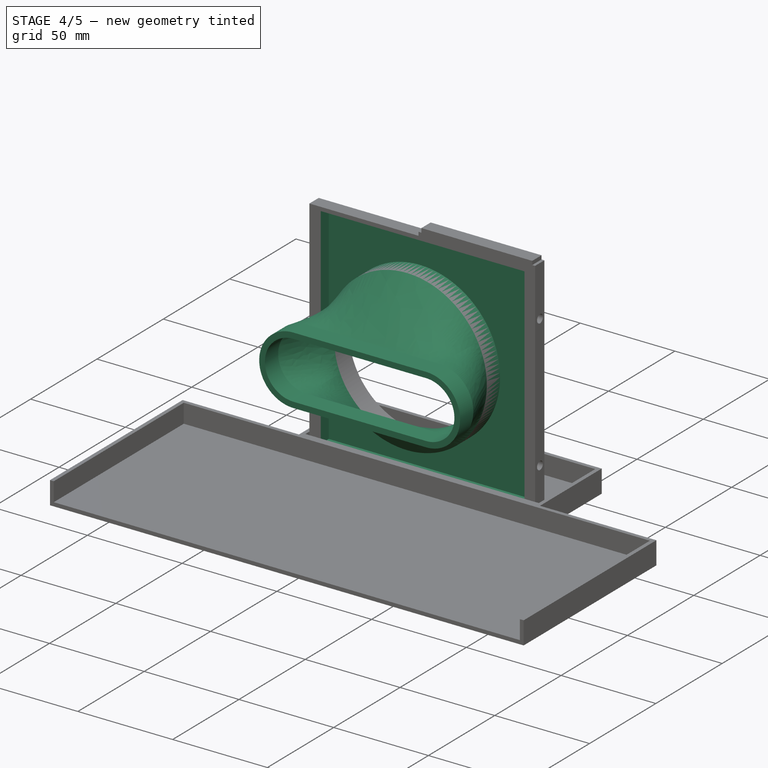
[diagram: stage 4 of 5 — iso view after this stage's code; geometry added in this stage tinted green]
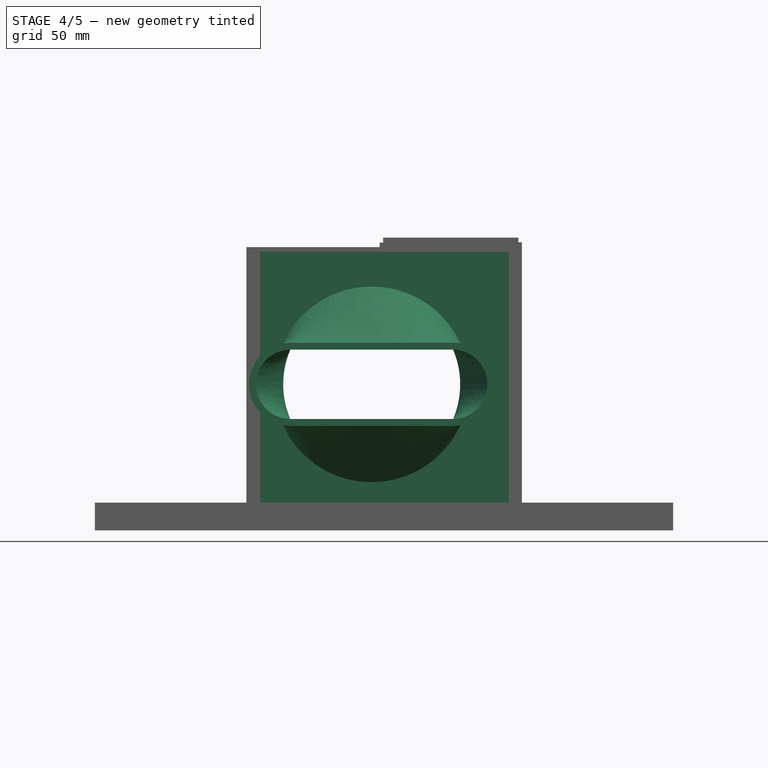
[diagram: stage 4 of 5 — front view after this stage's code; geometry added in this stage tinted green]
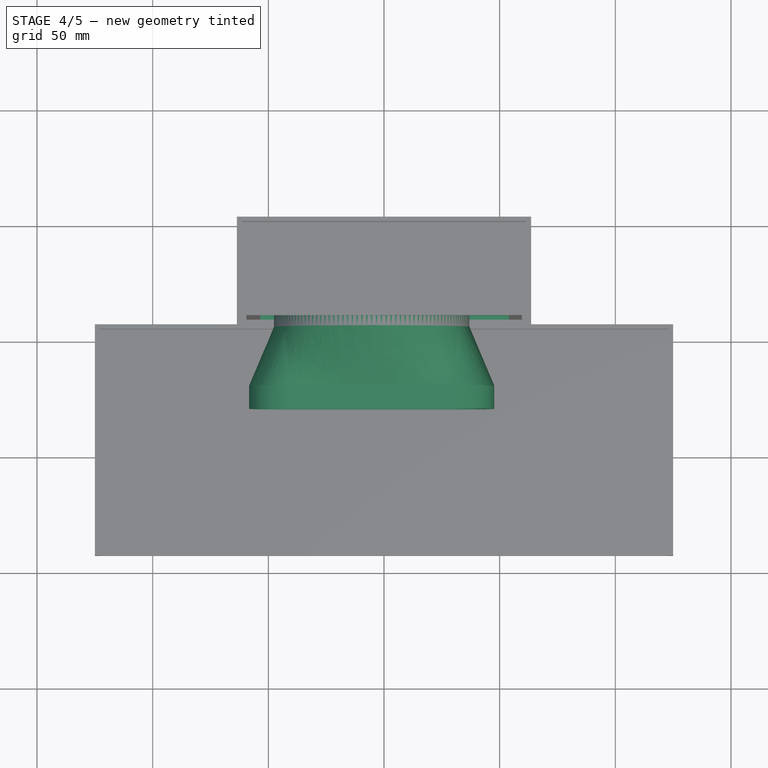
[diagram: stage 4 of 5 — top view after this stage's code; geometry added in this stage tinted green]
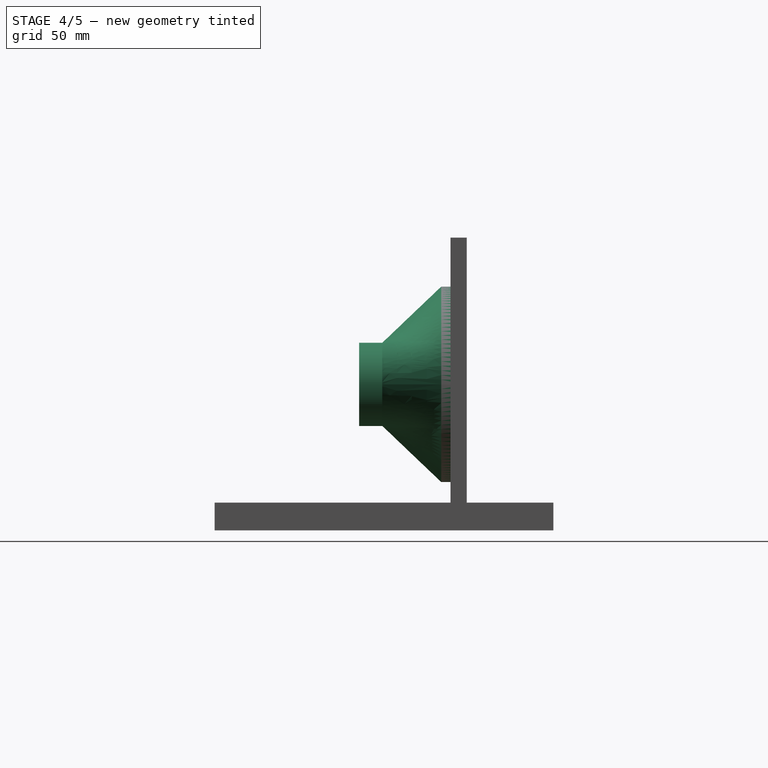
[diagram: stage 4 of 5 — right view after this stage's code; geometry added in this stage tinted green]
FEATURE [Sketcher::SketchObject] Sketch019  label="FRontLeftHeatInsertSketch"
  ArcFitTolerance = 0
  AttachmentSupport = -> [Pocket005]
  FullyConstrained = true
  MakeInternals = false
  MapMode = 5
  Placement = pos=(-59.5,0,0) rot=(0.707107,0,-0.707107;3.14159rad)
  expr: Constraints[2] = <<FrontRightHeatInsertSketch>>.Constraints.insertDiameter
  expr: Constraints[3] = <<FrontRightHeatInsertSketch>>.Constraints.insertDiameter / 2 + 1.5 mm
  expr: Constraints[4] = <<FrontRightHeatInsertSketch>>.Constraints.holeOffset
  sketch-geometry (2):
    g0: Circle CenterX=-35 CenterY=36.8 CenterZ=0 NormalX=0 NormalY=0 NormalZ=1 AngleXU=0 Radius=2.2
    g1: Circle CenterX=35 CenterY=36.8 CenterZ=0 NormalX=0 NormalY=0 NormalZ=1 AngleXU=0 Radius=2.2
  constraints (5):
    c: Symmetric(g0,g1,g-2)
    c: Equal(g0,g1)
    c: Diameter(g0) = 4.4
    c: DistanceY(g0,g-3) = 3.7
    c: DistanceX(g0,g1) = 70
FEATURE [PartDesign::Pocket] Pocket006  label="FrontLeftHeatINsertPocket"
  BaseFeature = -> Pocket005
  Direction = (1,0,2e-16)
  Length = 5
  Length2 = 5
  Placement = pos=(0,0,0) rot=(1,0,0;1.5708rad)
  Profile = -> Sketch019
  ReferenceAxis = -> Sketch019 [N_Axis]
  Suppressed = false
  Type = 0
FEATURE [PartDesign::Pad] Pad026
  BaseFeature = -> Pocket006
  Direction = (0,-1,2e-16)
  Length = 10
  Length2 = 10
  Placement = pos=(0,0,0) rot=(1,0,0;1.5708rad)
  Profile = -> Sketch041
  ReferenceAxis = -> Sketch041 [N_Axis]
  Refine = true
  Suppressed = false
  Type = 0
FEATURE [Sketcher::SketchObject] Sketch042
  ArcFitTolerance = 1e-06
  AttachmentOffset = pos=(0,0,70) rot=(0,0,1;0rad)
  AttachmentSupport = -> [XZ_Plane004]
  ExternalGeometry = -> [Pad026]
  FullyConstrained = true
  MakeInternals = false
  MapMode = 5
  Placement = pos=(0,-70,1.55e-14) rot=(1,0,0;1.5708rad)
  sketch-geometry (10):
    g0: ArcOfCircle CenterX=-40.32 CenterY=0.16 CenterZ=0 NormalX=0 NormalY=0 NormalZ=1 AngleXU=0 Radius=18 StartAngle=1.5708 EndAngle=4.71239
    g1: ArcOfCircle CenterX=29.68 CenterY=0.16 CenterZ=0 NormalX=0 NormalY=0 NormalZ=1 AngleXU=0 Radius=18 StartAngle=4.71239 EndAngle=7.85398
    g2: LineSegment StartX=-40.32 StartY=18.16 StartZ=0 EndX=29.68 EndY=18.16 EndZ=0
    g3: LineSegment StartX=-40.32 StartY=-17.84 StartZ=0 EndX=29.68 EndY=-17.84 EndZ=0
    g4: GeomPoint X=-5.32 Y=0.16 Z=0
    g5: ArcOfCircle CenterX=-40.32 CenterY=0.16 CenterZ=0 NormalX=0 NormalY=0 NormalZ=1 AngleXU=0 Radius=15 StartAngle=1.5708 EndAngle=4.71239
    g6: ArcOfCircle CenterX=29.68 CenterY=0.16 CenterZ=0 NormalX=0 NormalY=0 NormalZ=1 AngleXU=0 Radius=15 StartAngle=4.71239 EndAngle=7.85398
    g7: LineSegment StartX=-40.32 StartY=15.16 StartZ=0 EndX=29.68 EndY=15.16 EndZ=0
    g8: LineSegment StartX=-40.32 StartY=-14.84 StartZ=0 EndX=29.68 EndY=-14.84 EndZ=0
    g9: GeomPoint X=-5.32 Y=0.16 Z=0
  constraints (20):
    c: Tangent(g0,g2) = 1.5708
    c: Tangent(g0,g3) = -1.5708
    c: Tangent(g1,g2) = 1.5708
    c: Tangent(g1,g3) = -1.5708
    c: Equal(g0,g1)
    c: Horizontal(g2)
    c: Symmetric(g0,g1,g4)
    c: Coincident(g4,g-3)
    c: DistanceX(g0,g1) = 70
    c: DistanceY(g1,g1) = 36
    c: Tangent(g5,g7) = 1.5708
    c: Tangent(g5,g8) = -1.5708
    c: Tangent(g6,g7) = 1.5708
    c: Tangent(g6,g8) = -1.5708
    c: Equal(g5,g6)
    c: Horizontal(g7)
    c: Symmetric(g5,g6,g9)
    c: Coincident(g9,g4)
    c: DistanceY(g6,g6) = 30
    c: DistanceX(g5,g6) = 70
FEATURE [PartDesign::AdditiveLoft] AdditiveLoft001
  BaseFeature = -> Pad026
  Closed = false
  Placement = pos=(0,0,0) rot=(1,0,0;1.5708rad)
  Profile = -> Pad026 [Face18]
  Refine = true
  Ruled = false
  Sections = -> [Sketch042]
  Suppressed = false
FEATURE [PartDesign::Pad] Pad027
  BaseFeature = -> AdditiveLoft001
  Direction = (0,-1,2e-16)
  Length = 10
  Length2 = 10
  Placement = pos=(0,0,0) rot=(1,0,0;1.5708rad)
  Profile = -> AdditiveLoft001 [Face33]
  Refine = true
  Suppressed = false
  Type = 0
FEATURE [Sketcher::SketchObject] Sketch044
  ArcFitTolerance = 1e-06
  AttachmentSupport = -> [Pad027]
  ExternalGeometry = -> [Pad027]
  FullyConstrained = true
  MakeInternals = false
  MapMode = 5
  Placement = pos=(0,-40.5,9.5e-15) rot=(1,0,0;1.5708rad)
  sketch-geometry (5):
    g0: LineSegment StartX=-53.5 StartY=-53.5 StartZ=0 EndX=54 EndY=-53.5 EndZ=0
    g1: LineSegment StartX=54 StartY=-53.5 StartZ=0 EndX=54 EndY=57.5 EndZ=0
    g2: LineSegment StartX=54 StartY=57.5 StartZ=0 EndX=-53.5 EndY=57.5 EndZ=0
    g3: LineSegment StartX=-53.5 StartY=57.5 StartZ=0 EndX=-53.5 EndY=-53.5 EndZ=0
    g4: Circle CenterX=-5.32 CenterY=0.16 CenterZ=0 NormalX=0 NormalY=0 NormalZ=1 AngleXU=0 Radius=42.25
  constraints (14):
    c: Coincident(g0,g1)
    c: Coincident(g1,g2)
    c: Coincident(g2,g3)
    c: Coincident(g3,g0)
    c: Horizontal(g0)
    c: Horizontal(g2)
    c: Vertical(g1)
    c: Vertical(g3)
    c: DistanceY(g1,g-4) = 6
    c: DistanceX(g-5,g2) = 6
    c: DistanceY(g-5,g0) = 6
    c: DistanceX(g1,g-4) = 6
    c: Coincident(g4,g-3)
    c: Equal(g4,g-3)
FEATURE [PartDesign::Pocket] Pocket016
  BaseFeature = -> Pad027
  Direction = (0,1,-2e-16)
  Length = 6
  Length2 = 5
  Placement = pos=(0,0,0) rot=(1,0,0;1.5708rad)
  Profile = -> Sketch044
  ReferenceAxis = -> Sketch044 [N_Axis]
  Refine = true
  Suppressed = false
  Type = 0
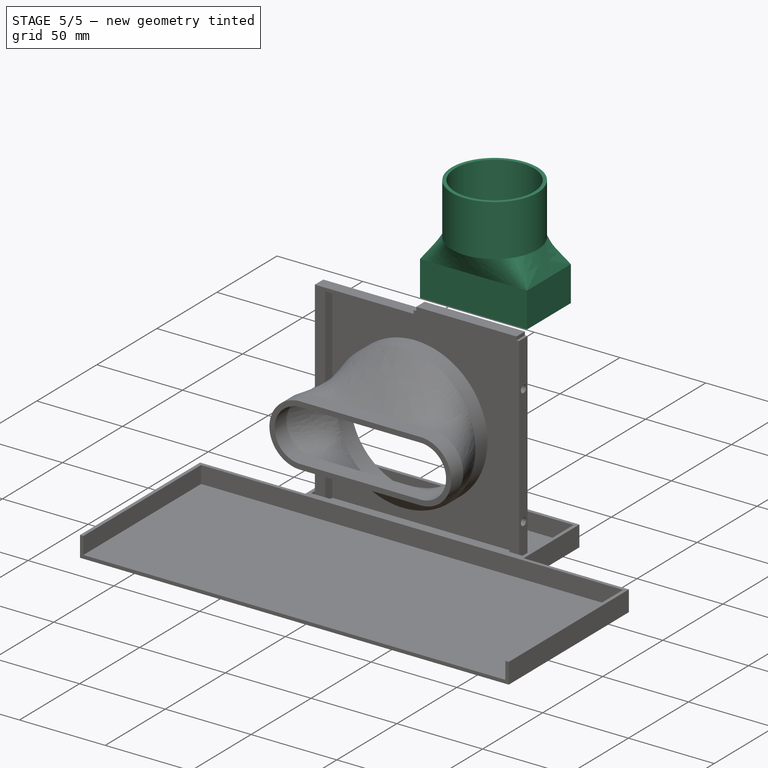
[diagram: stage 5 of 5 — iso view after this stage's code; geometry added in this stage tinted green]
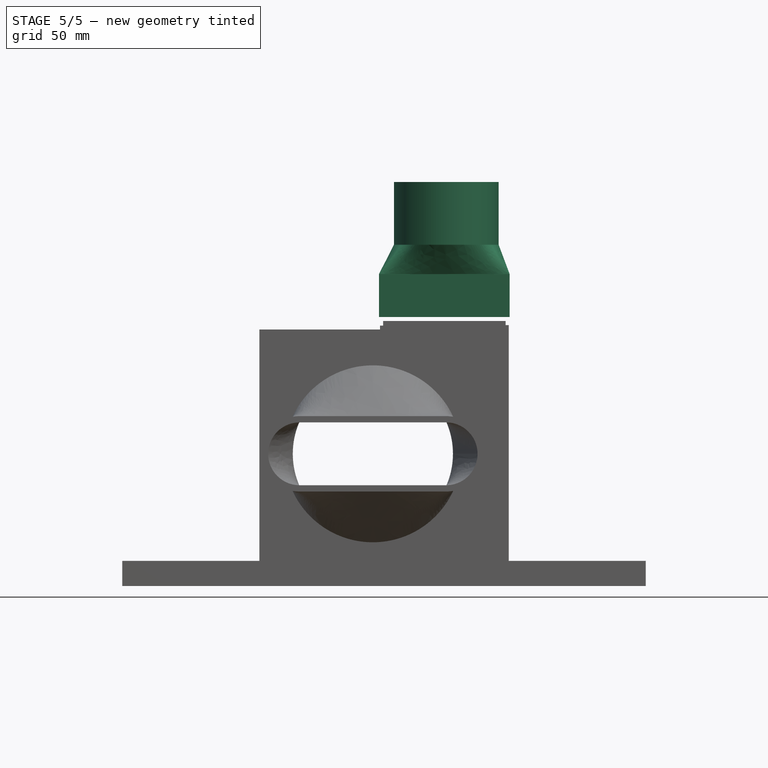
[diagram: stage 5 of 5 — front view after this stage's code; geometry added in this stage tinted green]
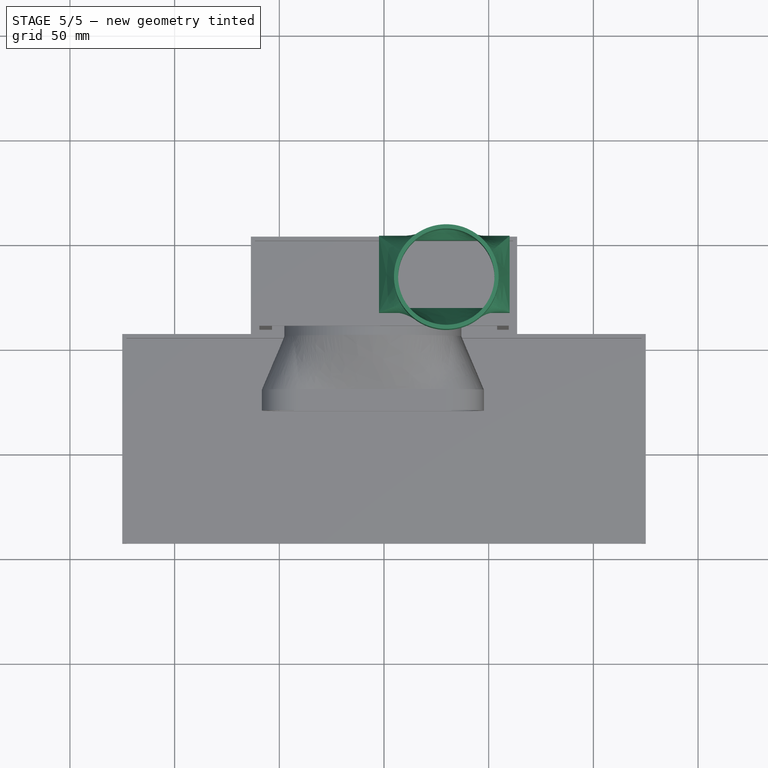
[diagram: stage 5 of 5 — top view after this stage's code; geometry added in this stage tinted green]
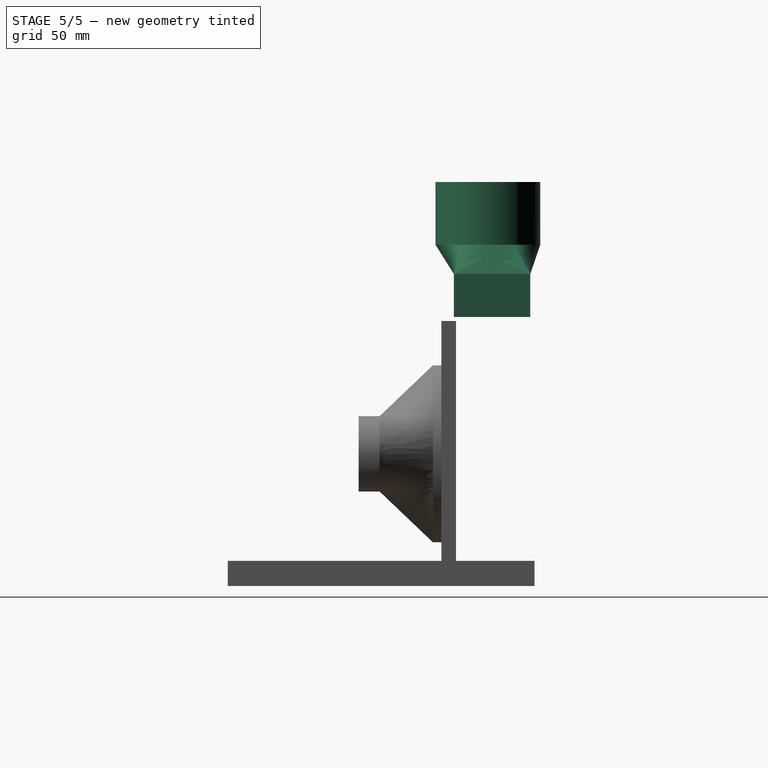
[diagram: stage 5 of 5 — right view after this stage's code; geometry added in this stage tinted green]
FEATURE [PartDesign::Body] Body  label="FanBody"
  AllowCompound = false
  Group = -> [Sketch,Pad,Sketch001,Pad001,Sketch002,Pocket,Sketch003,Pocket001,Fillet]
  Origin = -> Origin
  Tip = -> Fillet
FEATURE [Sketcher::SketchObject] Sketch013  label="PipeAttachmentSketch"
  ArcFitTolerance = 0
  AttachmentOffset = pos=(0,0,100) rot=(0,0,1;0rad)
  AttachmentSupport = -> [XY_Plane003]
  FullyConstrained = true
  MakeInternals = false
  MapMode = 5
  Placement = pos=(0,0,100) rot=(0,0,1;0rad)
  expr: Constraints[4] = .Constraints.diameter - 4 mm
  sketch-geometry (3):
    g0: GeomPoint [constr] X=29.75 Y=-18.25 Z=0
    g1: Circle CenterX=29.75 CenterY=-18.25 CenterZ=0 NormalX=0 NormalY=0 NormalZ=1 AngleXU=0 Radius=25
    g2: Circle CenterX=29.75 CenterY=-18.25 CenterZ=0 NormalX=0 NormalY=0 NormalZ=1 AngleXU=0 Radius=23
  constraints (5):
    c: Symmetric(g-3,g-4,g0)
    c: Coincident(g1,g0)
    c: Coincident(g2,g1)
    c: Diameter(g1) = 50  'diameter'
    c: Diameter(g2) = 46
FEATURE [Sketcher::SketchObject] Sketch014  label="CutoffSketch"
  ArcFitTolerance = 0
  AttachmentOffset = pos=(0,0,32.5) rot=(0,0,1;0rad)
  AttachmentSupport = -> [XZ_Plane001]
  FullyConstrained = true
  MakeInternals = false
  MapMode = 5
  Placement = pos=(0,-32.5,7.2e-15) rot=(1,0,0;1.5708rad)
  sketch-geometry (4):
    g0: LineSegment StartX=-59.5 StartY=59.5 StartZ=0 EndX=59.5 EndY=59.5 EndZ=0
    g1: LineSegment StartX=59.5 StartY=59.5 StartZ=0 EndX=59.5 EndY=-59.5 EndZ=0
    g2: LineSegment StartX=59.5 StartY=-59.5 StartZ=0 EndX=-59.5 EndY=-59.5 EndZ=0
    g3: LineSegment StartX=-59.5 StartY=-59.5 StartZ=0 EndX=-59.5 EndY=59.5 EndZ=0
  constraints (10):
    c: Coincident(g0,g1)
    c: Coincident(g1,g2)
    c: Coincident(g2,g3)
    c: Coincident(g3,g0)
    c: Horizontal(g0)
    c: Horizontal(g2)
    c: Vertical(g1)
    c: Vertical(g3)
    c: Coincident(g0,g-3)
    c: Coincident(g1,g-4)
FEATURE [Sketcher::SketchObject] Sketch036  label="FanPowerCableSketch"
  ArcFitTolerance = 0
  FullyConstrained = true
  MakeInternals = false
  MapMode = 5
  Placement = pos=(0,2,0) rot=(-1,0,0;1.5708rad)
  sketch-geometry (5):
    g0: LineSegment StartX=20 StartY=24 StartZ=0 EndX=20 EndY=14 EndZ=0
    g1: LineSegment StartX=20 StartY=14 StartZ=0 EndX=30 EndY=14 EndZ=0
    g2: LineSegment StartX=30 StartY=14 StartZ=0 EndX=30 EndY=24 EndZ=0
    g3: LineSegment StartX=30 StartY=24 StartZ=0 EndX=20 EndY=24 EndZ=0
    g4: GeomPoint [constr] X=25 Y=19 Z=0
  constraints (13):
    c: Coincident(g0,g1)
    c: Coincident(g1,g2)
    c: Coincident(g2,g3)
    c: Coincident(g3,g0)
    c: Horizontal(g1)
    c: Horizontal(g3)
    c: Vertical(g0)
    c: Vertical(g2)
    c: Symmetric(g1,g0,g4)
    c: Equal(g1,g0)
    c: DistanceY(g2,g2) = 10
    c: DistanceY(g-1,g0) = 14
    c: DistanceX(g-1,g0) = 20
FEATURE [Sketcher::SketchObject] Sketch041
  ArcFitTolerance = 1e-06
  FullyConstrained = true
  MakeInternals = false
  MapMode = 5
  Placement = pos=(0,-34.5,8e-15) rot=(1,0,0;1.5708rad)
  sketch-geometry (4):
    g0: Circle CenterX=-5.32 CenterY=0.16 CenterZ=0 NormalX=0 NormalY=0 NormalZ=1 AngleXU=0 Radius=42.25
    g1: Circle CenterX=-5.32 CenterY=0.16 CenterZ=0 NormalX=0 NormalY=0 NormalZ=1 AngleXU=0 Radius=38.25
    g2: GeomPoint X=32.9297 Y=0 Z=0
    g3: GeomPoint X=36.9297 Y=0 Z=0
  constraints (8):
    c: Coincident(g1,g0)
    c: Equal(g1,g-3)
    c: PointOnObject(g2,g-1)
    c: PointOnObject(g3,g-1)
    c: Coincident(g0,g-3)
    c: PointOnObject(g2,g1)
    c: PointOnObject(g3,g0)
    c: DistanceX(g2,g3) = 4
FEATURE [PartDesign::SubShapeBinder] Binder  label="CasingBinder"
  BindCopyOnChange = 0
  BindMode = 0
  ClaimChildren = false
  Context = -> Body004 [Binder.]
  Fuse = false
  MakeFace = true
  OffsetFill = false
  OffsetIntersection = false
  OffsetJoinType = 0
  OffsetOpenResult = false
  PartialLoad = false
  Refine = true
  Relative = true
  Support = -> [Body001[Pocket002.]]
  _Version = 2
FEATURE [PartDesign::SubShapeBinder] Binder001  label="FanCasingExhaustBinder"
  BindCopyOnChange = 0
  BindMode = 0
  ClaimChildren = false
  Context = -> Body002 [Binder001.]
  Fuse = false
  MakeFace = true
  OffsetFill = false
  OffsetIntersection = false
  OffsetJoinType = 0
  OffsetOpenResult = false
  PartialLoad = false
  Refine = true
  Relative = true
  Support = -> [Body001[Pocket002.]]
  _Version = 2
FEATURE [Sketcher::SketchObject] Sketch008  label="exhaustBaseSketch"
  ArcFitTolerance = 0
  AttachmentOffset = pos=(0,0,59.5) rot=(0,0,1;0rad)
  AttachmentSupport = -> [XY_Plane002]
  ExternalGeometry = -> [Binder001]
  FullyConstrained = true
  MakeInternals = false
  MapMode = 5
  Placement = pos=(0,0,59.5) rot=(0,0,1;0rad)
  sketch-geometry (8):
    g0: LineSegment StartX=-1.9 StartY=-32.5 StartZ=0 EndX=59.5 EndY=-32.5 EndZ=0
    g1: LineSegment StartX=59.5 StartY=-32.5 StartZ=0 EndX=59.5 EndY=1.42e-14 EndZ=0
    g2: LineSegment StartX=59.5 StartY=1.42e-14 StartZ=0 EndX=-1.9 EndY=1.42e-14 EndZ=0
    g3: LineSegment StartX=-1.9 StartY=1.42e-14 StartZ=0 EndX=-1.9 EndY=-32.5 EndZ=0
    g4: LineSegment StartX=1.6 StartY=-30.5 StartZ=0 EndX=56 EndY=-30.5 EndZ=0
    g5: LineSegment StartX=56 StartY=-30.5 StartZ=0 EndX=56 EndY=-2 EndZ=0
    g6: LineSegment StartX=56 StartY=-2 StartZ=0 EndX=1.6 EndY=-2 EndZ=0
    g7: LineSegment StartX=1.6 StartY=-2 StartZ=0 EndX=1.6 EndY=-30.5 EndZ=0
  constraints (22):
    c: Coincident(g0,g1)
    c: Coincident(g1,g2)
    c: Coincident(g2,g3)
    c: Coincident(g3,g0)
    c: Horizontal(g0)
    c: Vertical(g1)
    c: Coincident(g4,g5)
    c: Coincident(g5,g6)
    c: Coincident(g6,g7)
    c: Coincident(g7,g4)
    c: Horizontal(g4)
    c: Horizontal(g6)
    c: Vertical(g5)
    c: Vertical(g7)
    c: DistanceX(g2,g6) = 3.5
    c: DistanceX(g5,g1) = 3.5
    c: DistanceY(g5,g1) = 2
    c: DistanceY(g0,g4) = 2
    c: Coincident(g2,g-3)
    c: Coincident(g0,g-3)
    c: DistanceX(g1,g-5) = 2
    c: Horizontal(g2)
FEATURE [PartDesign::Pad] Pad006  label="ExhaustBasePad"
  Direction = (0,0,1)
  Length = 1.8
  Length2 = 10
  Profile = -> Sketch008
  ReferenceAxis = -> Sketch008 [N_Axis]
  Suppressed = false
  Type = 0
FEATURE [Sketcher::SketchObject] Sketch009  label="ExhaustPipeSketch"
  ArcFitTolerance = 0
  AttachmentSupport = -> [Pad006]
  ExternalGeometry = -> [Pad006]
  FullyConstrained = true
  MakeInternals = false
  MapMode = 5
  Placement = pos=(0,0,61.3) rot=(0,0,1;0rad)
  sketch-geometry (8):
    g0: LineSegment StartX=1.6 StartY=-30.5 StartZ=0 EndX=56 EndY=-30.5 EndZ=0
    g1: LineSegment StartX=56 StartY=-30.5 StartZ=0 EndX=56 EndY=-2 EndZ=0
    g2: LineSegment StartX=56 StartY=-2 StartZ=0 EndX=1.6 EndY=-2 EndZ=0
    g3: LineSegment StartX=1.6 StartY=-2 StartZ=0 EndX=1.6 EndY=-30.5 EndZ=0
    g4: LineSegment StartX=-0.4 StartY=-32.5 StartZ=0 EndX=58 EndY=-32.5 EndZ=0
    g5: LineSegment StartX=58 StartY=-32.5 StartZ=0 EndX=58 EndY=-1.42e-14 EndZ=0
    g6: LineSegment StartX=58 StartY=-1.42e-14 StartZ=0 EndX=-0.4 EndY=-1.42e-14 EndZ=0
    g7: LineSegment StartX=-0.4 StartY=-1.42e-14 StartZ=0 EndX=-0.4 EndY=-32.5 EndZ=0
  constraints (22):
    c: Coincident(g0,g1)
    c: Coincident(g1,g2)
    c: Coincident(g2,g3)
    c: Coincident(g3,g0)
    c: Horizontal(g0)
    c: Horizontal(g2)
    c: Vertical(g1)
    c: Vertical(g3)
    c: Coincident(g0,g-6)
    c: Coincident(g1,g-5)
    c: Coincident(g4,g5)
    c: Coincident(g5,g6)
    c: Coincident(g6,g7)
    c: Coincident(g7,g4)
    c: Horizontal(g4)
    c: Horizontal(g6)
    c: Vertical(g5)
    c: Vertical(g7)
    c: DistanceX(g1,g5) = 2
    c: DistanceY(g1,g5) = 2
    c: DistanceY(g4,g0) = 2
    c: DistanceX(g6,g2) = 2
FEATURE [PartDesign::Pad] Pad007  label="ExhaustPipePad"
  BaseFeature = -> Pad006
  Direction = (0,0,1)
  Length = 22
  Length2 = 10
  Profile = -> Sketch009
  ReferenceAxis = -> Sketch009 [N_Axis]
  Suppressed = false
  Type = 0
FEATURE [PartDesign::Body] Body002  label="ExhaustPipe"
  AllowCompound = false
  Group = -> [Binder001,Sketch008,Pad006,Sketch009,Pad007]
  Origin = -> Origin002
  Tip = -> Pad007
FEATURE [PartDesign::SubShapeBinder] Binder002  label="ExhaustPipeDuctBinder"
  BindCopyOnChange = 0
  BindMode = 0
  ClaimChildren = false
  Context = -> Body003 [Binder002.]
  Fuse = false
  MakeFace = true
  OffsetFill = false
  OffsetIntersection = false
  OffsetJoinType = 0
  OffsetOpenResult = false
  PartialLoad = false
  Refine = true
  Relative = true
  Support = -> [Body002[Pad007.]]
  _Version = 2
FEATURE [Sketcher::SketchObject] Sketch012  label="DuctFanBaseSketch"
  ArcFitTolerance = 0
  AttachmentOffset = pos=(1,-0.25,65.5) rot=(0,0,1;0rad)
  AttachmentSupport = -> [XY_Plane003]
  ExternalGeometry = -> [Binder002]
  FullyConstrained = true
  MakeInternals = false
  MapMode = 5
  Placement = pos=(1,-0.25,65.5) rot=(0,0,1;0rad)
  sketch-geometry (8):
    g0: LineSegment StartX=-1.4 StartY=-32.25 StartZ=0 EndX=57 EndY=-32.25 EndZ=0
    g1: LineSegment StartX=57 StartY=-32.25 StartZ=0 EndX=57 EndY=0.25 EndZ=0
    g2: LineSegment StartX=57 StartY=0.25 StartZ=0 EndX=-1.4 EndY=0.25 EndZ=0
    g3: LineSegment StartX=-1.4 StartY=0.25 StartZ=0 EndX=-1.4 EndY=-32.25 EndZ=0
    g4: LineSegment StartX=-3.4 StartY=-34.25 StartZ=0 EndX=59 EndY=-34.25 EndZ=0
    g5: LineSegment StartX=59 StartY=-34.25 StartZ=0 EndX=59 EndY=2.25 EndZ=0
    g6: LineSegment StartX=59 StartY=2.25 StartZ=0 EndX=-3.4 EndY=2.25 EndZ=0
    g7: LineSegment StartX=-3.4 StartY=2.25 StartZ=0 EndX=-3.4 EndY=-34.25 EndZ=0
  constraints (22):
    c: Coincident(g0,g1)
    c: Coincident(g1,g2)
    c: Coincident(g2,g3)
    c: Coincident(g3,g0)
    c: Horizontal(g0)
    c: Horizontal(g2)
    c: Vertical(g1)
    c: Vertical(g3)
    c: Coincident(g0,g-3)
    c: Coincident(g1,g-4)
    c: Coincident(g4,g5)
    c: Coincident(g5,g6)
    c: Coincident(g6,g7)
    c: Coincident(g7,g4)
    c: Horizontal(g4)
    c: Horizontal(g6)
    c: Vertical(g5)
    c: Vertical(g7)
    c: DistanceX(g6,g2) = 2
    c: DistanceY(g2,g6) = 2
    c: DistanceX(g0,g4) = 2
    c: DistanceY(g4,g0) = 2
FEATURE [PartDesign::Pad] Pad008  label="DuctkFanBasePad"
  Direction = (0,0,1)
  Length = 20.5
  Length2 = 10
  Profile = -> Sketch012
  ReferenceAxis = -> Sketch012 [N_Axis]
  Suppressed = false
  Type = 0
FEATURE [PartDesign::AdditiveLoft] AdditiveLoft
  BaseFeature = -> Pad008
  Closed = false
  Profile = -> Pad008 [Face10]
  Ruled = false
  Sections = -> [Sketch013]
  Suppressed = false
FEATURE [PartDesign::Pad] Pad009  label="DuctPAd"
  BaseFeature = -> AdditiveLoft
  Direction = (0,0,1)
  Length = 30
  Length2 = 10
  Profile = -> AdditiveLoft [Face14]
  Suppressed = false
  Type = 0
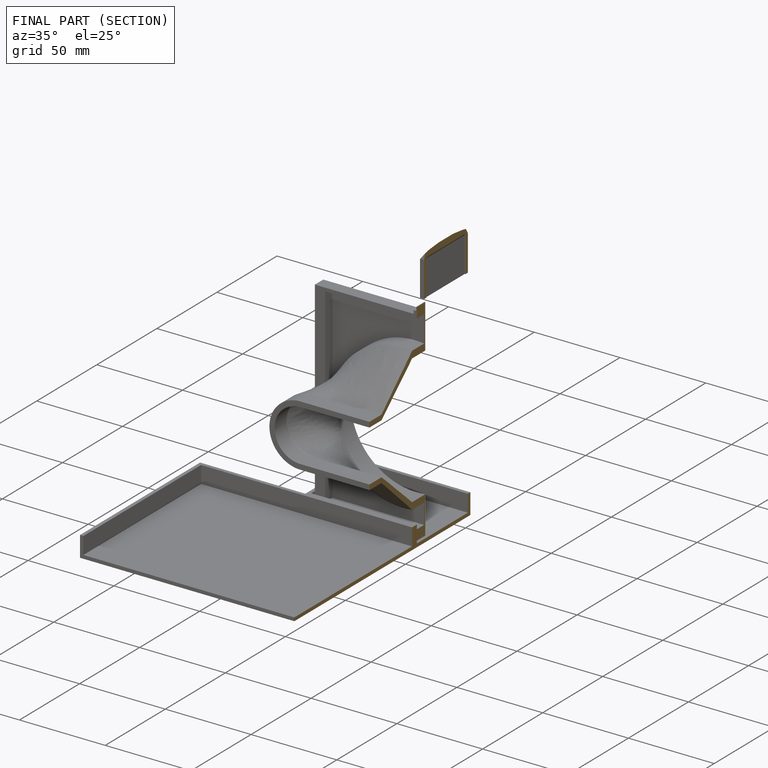
[diagram: finished part — half-section view (interior)]
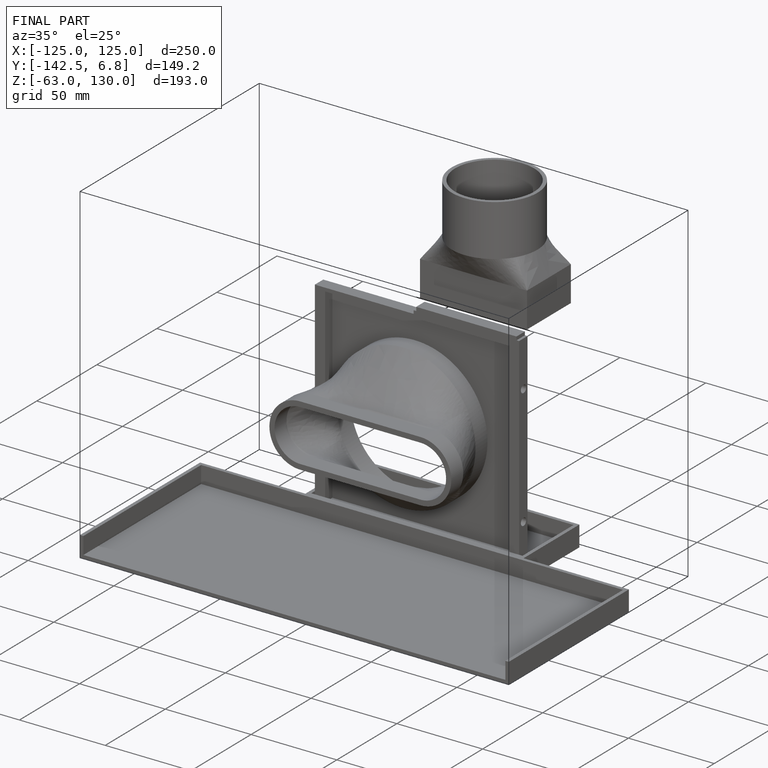
[diagram: finished part — iso view with bounding-box wireframe]
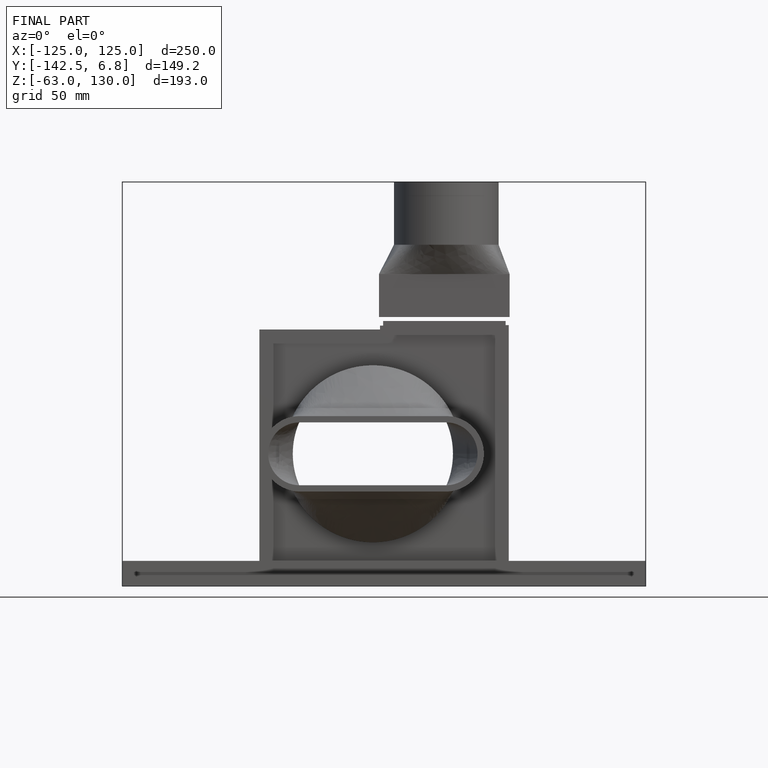
[diagram: finished part — front view with bounding-box wireframe]
